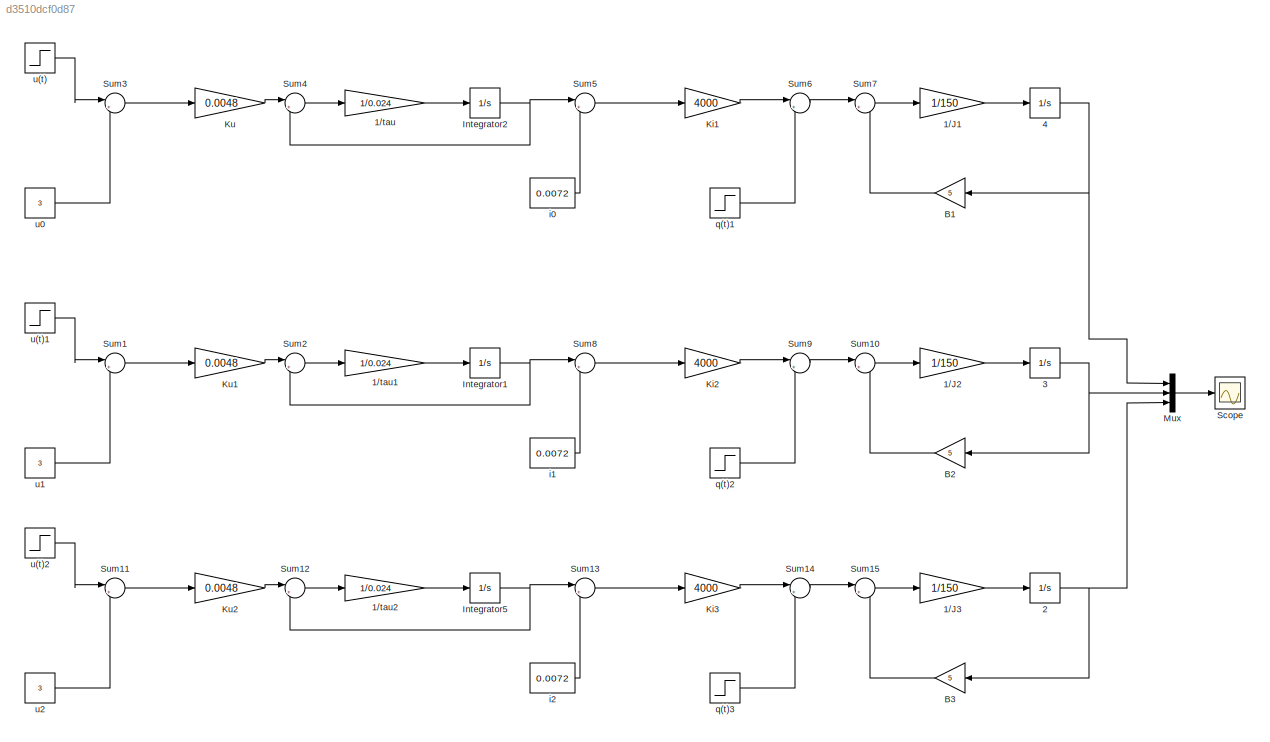
MODEL slx_d3510dcf0d87
KIND model
CONFIG AbsTol = auto
CONFIG EnableMultiTasking = off
CONFIG FixedStep = auto
CONFIG MaxStep = auto
CONFIG MinStep = auto
CONFIG RelTol = 1e-3
CONFIG SampleTimeConstraint = Unconstrained
CONFIG SolverName = VariableStepAuto
CONFIG StartTime = 0.0
CONFIG StopTime = 500
BLOCK [Gain] 1//J1
  Gain = 1/150
BLOCK [Gain] 1//J2
  Gain = 1/150
BLOCK [Gain] 1//J3
  Gain = 1/150
BLOCK [Gain] 1//tau
  Gain = 1/0.024
BLOCK [Gain] 1//tau1
  Gain = 1/0.024
BLOCK [Gain] 1//tau2
  Gain = 1/0.024
BLOCK [Integrator] 2
  Ports = [1, 1]
BLOCK [Integrator] 3
  Ports = [1, 1]
BLOCK [Integrator] 4
  Ports = [1, 1]
BLOCK [Gain] B1
  Gain = 5
BLOCK [Gain] B2
  Gain = 5
BLOCK [Gain] B3
  Gain = 5
BLOCK [Integrator] Integrator1
  Ports = [1, 1]
BLOCK [Integrator] Integrator2
  Ports = [1, 1]
BLOCK [Integrator] Integrator5
  Ports = [1, 1]
BLOCK [Gain] Ki1
  Gain = 4000
BLOCK [Gain] Ki2
  Gain = 4000
BLOCK [Gain] Ki3
  Gain = 4000
BLOCK [Gain] Ku
  Gain = 0.0048
BLOCK [Gain] Ku1
  Gain = 0.0048
BLOCK [Gain] Ku2
  Gain = 0.0048
BLOCK [Mux] Mux
  DisplayOption = bar
  Inputs = 3
  Ports = [3, 1]
BLOCK [Scope] Scope
  Floating = off
  NumInputPorts = 1
  Ports = [1]
  ScopeSpecificationString = Simulink.scopes.TimeScopeBlockCfg('CurrentConfiguration', extmgr.ConfigurationSet(extmgr.Configuration('Core','General UI',true,'FigureColor',[1 1 1]),extmgr.Configuration('Core','Source UI',true),extmgr.Configuration('Sources','WiredSimulink',true),extmgr.Configuration('Visuals','Time Domain',true,'SerializedDisplays',{struct('MinYLimReal','0','MaxYLimReal','11','YLabelReal','Velocidade de Giro w...<+2362ch>
BLOCK [Sum] Sum1
  Inputs = |+-
  Ports = [2, 1]
BLOCK [Sum] Sum10
  Inputs = |+-
  Ports = [2, 1]
BLOCK [Sum] Sum11
  Inputs = |+-
  Ports = [2, 1]
BLOCK [Sum] Sum12
  Inputs = |+-
  Ports = [2, 1]
BLOCK [Sum] Sum13
  Inputs = |++
  Ports = [2, 1]
BLOCK [Sum] Sum14
  Inputs = |++
  Ports = [2, 1]
BLOCK [Sum] Sum15
  Inputs = |+-
  Ports = [2, 1]
BLOCK [Sum] Sum2
  Inputs = |+-
  Ports = [2, 1]
BLOCK [Sum] Sum3
  Inputs = |+-
  Ports = [2, 1]
BLOCK [Sum] Sum4
  Inputs = |+-
  Ports = [2, 1]
BLOCK [Sum] Sum5
  Inputs = |++
  Ports = [2, 1]
BLOCK [Sum] Sum6
  Inputs = |++
  Ports = [2, 1]
BLOCK [Sum] Sum7
  Inputs = |+-
  Ports = [2, 1]
BLOCK [Sum] Sum8
  Inputs = |++
  Ports = [2, 1]
BLOCK [Sum] Sum9
  Inputs = |++
  Ports = [2, 1]
BLOCK [Constant] i0
  Value = 0.0072
BLOCK [Constant] i1
  Value = 0.0072
BLOCK [Constant] i2
  Value = 0.0072
BLOCK [Step] q(t)1
  After = 5
  SampleTime = 0
  Time = 250
BLOCK [Step] q(t)2
  After = 0
  SampleTime = 0
  Time = 250
BLOCK [Step] q(t)3
  After = -5
  SampleTime = 0
  Time = 250
BLOCK [Step] u(t)
  After = 3
  Before = 3
  SampleTime = 0
  Time = 250
BLOCK [Step] u(t)1
  After = 3
  Before = 3
  SampleTime = 0
  Time = 250
BLOCK [Step] u(t)2
  After = 3
  Before = 3
  SampleTime = 0
  Time = 250
BLOCK [Constant] u0
  Value = 3
BLOCK [Constant] u1
  Value = 3
BLOCK [Constant] u2
  Value = 3
LINE 1//J1:1 -> 4:1
LINE 1//J2:1 -> 3:1
LINE 1//J3:1 -> 2:1
LINE 1//tau1:1 -> Integrator1:1
LINE 1//tau2:1 -> Integrator5:1
LINE 1//tau:1 -> Integrator2:1
NET 2:1 -> B3:1, Mux:3
NET 3:1 -> B2:1, Mux:2
NET 4:1 -> B1:1, Mux:1
LINE B1:1 -> Sum7:2
LINE B2:1 -> Sum10:2
LINE B3:1 -> Sum15:2
NET Integrator1:1 -> Sum2:2, Sum8:1
NET Integrator2:1 -> Sum4:2, Sum5:1
NET Integrator5:1 -> Sum12:2, Sum13:1
LINE Ki1:1 -> Sum6:1
LINE Ki2:1 -> Sum9:1
LINE Ki3:1 -> Sum14:1
LINE Ku1:1 -> Sum2:1
LINE Ku2:1 -> Sum12:1
LINE Ku:1 -> Sum4:1
LINE Mux:1 -> Scope:1
LINE Sum10:1 -> 1//J2:1
LINE Sum11:1 -> Ku2:1
LINE Sum12:1 -> 1//tau2:1
LINE Sum13:1 -> Ki3:1
LINE Sum14:1 -> Sum15:1
LINE Sum15:1 -> 1//J3:1
LINE Sum1:1 -> Ku1:1
LINE Sum2:1 -> 1//tau1:1
LINE Sum3:1 -> Ku:1
LINE Sum4:1 -> 1//tau:1
LINE Sum5:1 -> Ki1:1
LINE Sum6:1 -> Sum7:1
LINE Sum7:1 -> 1//J1:1
LINE Sum8:1 -> Ki2:1
LINE Sum9:1 -> Sum10:1
LINE i0:1 -> Sum5:2
LINE i1:1 -> Sum8:2
LINE i2:1 -> Sum13:2
LINE q(t)1:1 -> Sum6:2
LINE q(t)2:1 -> Sum9:2
LINE q(t)3:1 -> Sum14:2
LINE u(t)1:1 -> Sum1:1
LINE u(t)2:1 -> Sum11:1
LINE u(t):1 -> Sum3:1
LINE u0:1 -> Sum3:2
LINE u1:1 -> Sum1:2
LINE u2:1 -> Sum11:2
note: NET lines group one-source signal fan-out (src -> all destinations, sorted); 1:1 wires keep LINE
